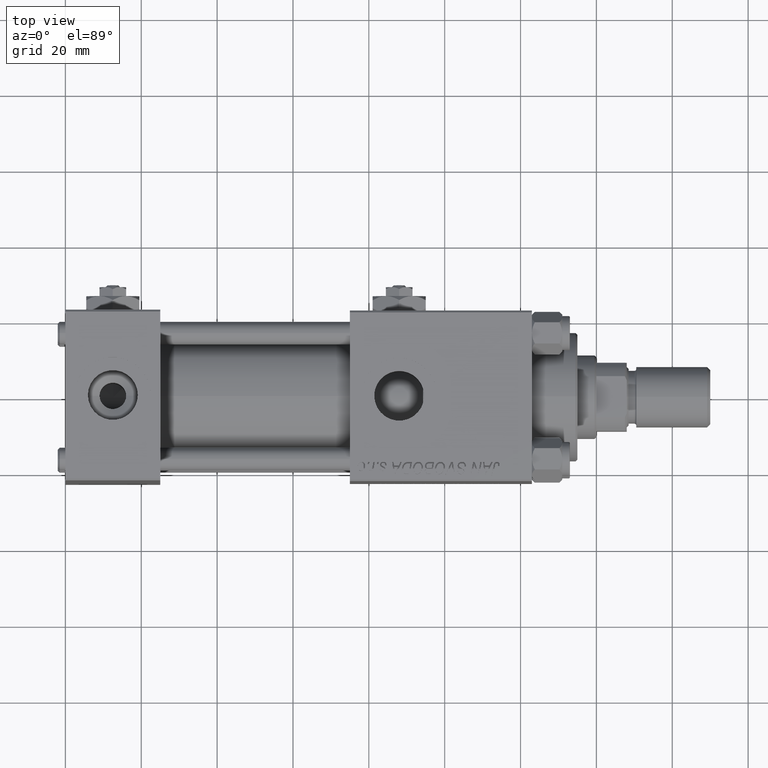
[diagram: clean part render]
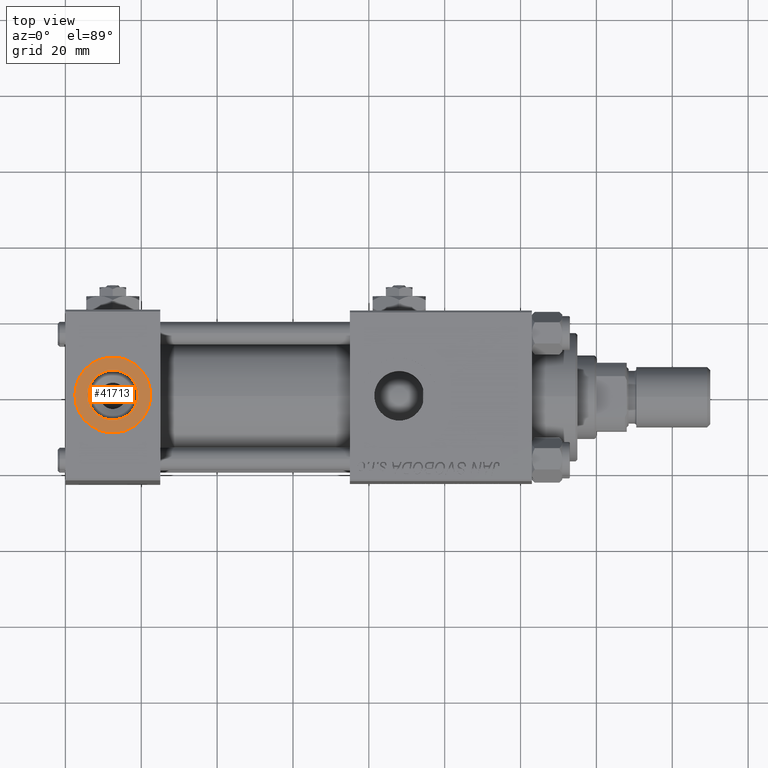
[diagram: same view with one face highlighted and labeled with its STEP entity id]
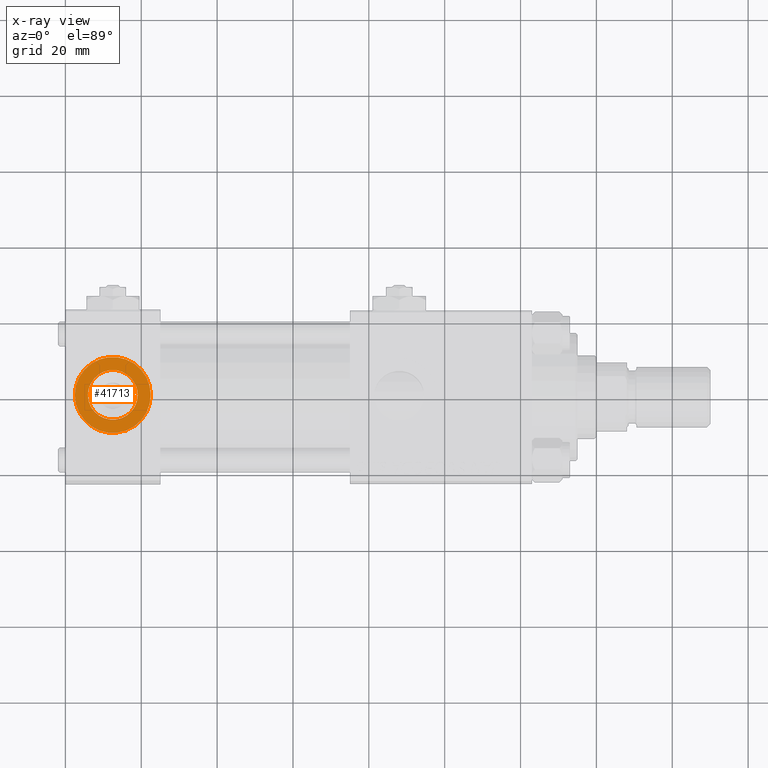
[diagram: x-ray of the same camera — body ghosted, the highlighted face saturated]
A machine part, top view. The second image highlights one B-rep face of the part: STEP entity #41713.
The next image is the same camera in x-ray: the body ghosted, the highlighted face saturated — about 0% of this face is hidden behind the body in this view.
In plain terms, the highlighted planar face has unit normal (0, 0, 1).
Its self-contained STEP definition (entity closure, byte-faithful):
#81 = CIRCLE ( 'NONE', #25495, 9.999999999999998224 ) ;
#1897 = EDGE_CURVE ( 'NONE', #22510, #25161, #81, .T. ) ;
#2862 = DIRECTION ( 'NONE',  ( 1.000000000000000000, 0.000000000000000000, -0.000000000000000000 ) ) ;
#3526 = CIRCLE ( 'NONE', #27333, 6.579999999999999183 ) ;
#3642 = AXIS2_PLACEMENT_3D ( 'NONE', #48685, #12370, #28492 ) ;
#6389 = ORIENTED_EDGE ( 'NONE', *, *, #47489, .F. ) ;
#7022 = EDGE_LOOP ( 'NONE', ( #17977, #9471 ) ) ;
#9471 = ORIENTED_EDGE ( 'NONE', *, *, #14762, .T. ) ;
#10438 = ORIENTED_EDGE ( 'NONE', *, *, #44525, .F. ) ;
#11974 = CARTESIAN_POINT ( 'NONE',  ( 5.920000000000002593, -4.591099886977776069E-15, 34.80000000000000426 ) ) ;
#12370 = DIRECTION ( 'NONE',  ( 0.000000000000000000, 0.000000000000000000, 1.000000000000000000 ) ) ;
#12468 = DIRECTION ( 'NONE',  ( 1.000000000000000000, 0.000000000000000000, 0.000000000000000000 ) ) ;
#14042 = CARTESIAN_POINT ( 'NONE',  ( 2.500000000000003997, -4.172270681669381263E-15, 34.80000000000000426 ) ) ;
#14650 = CARTESIAN_POINT ( 'NONE',  ( 12.50000000000000000, -5.396917480816734322E-15, 34.80000000000000426 ) ) ;
#14762 = EDGE_CURVE ( 'NONE', #25161, #22510, #27220, .T. ) ;
#15045 = DIRECTION ( 'NONE',  ( 0.000000000000000000, 0.000000000000000000, 1.000000000000000000 ) ) ;
#15515 = DIRECTION ( 'NONE',  ( 1.000000000000000000, 0.000000000000000000, 0.000000000000000000 ) ) ;
#16923 = VERTEX_POINT ( 'NONE', #52189 ) ;
#17092 = AXIS2_PLACEMENT_3D ( 'NONE', #35428, #15045, #2862 ) ;
#17977 = ORIENTED_EDGE ( 'NONE', *, *, #1897, .T. ) ;
#22510 = VERTEX_POINT ( 'NONE', #40794 ) ;
#23260 = FACE_BOUND ( 'NONE', #39030, .T. ) ;
#23709 = CARTESIAN_POINT ( 'NONE',  ( 12.50000000000000000, -5.396917480816734322E-15, 34.80000000000000426 ) ) ;
#25161 = VERTEX_POINT ( 'NONE', #14042 ) ;
#25495 = AXIS2_PLACEMENT_3D ( 'NONE', #42593, #46320, #12468 ) ;
#27220 = CIRCLE ( 'NONE', #37355, 9.999999999999998224 ) ;
#27333 = AXIS2_PLACEMENT_3D ( 'NONE', #14650, #35544, #52014 ) ;
#28492 = DIRECTION ( 'NONE',  ( 1.000000000000000000, 0.000000000000000000, 0.000000000000000000 ) ) ;
#31700 = PLANE ( 'NONE',  #17092 ) ;
#35428 = CARTESIAN_POINT ( 'NONE',  ( 12.50000000000000000, -5.396917480816734322E-15, 34.80000000000000426 ) ) ;
#35544 = DIRECTION ( 'NONE',  ( 0.000000000000000000, 0.000000000000000000, 1.000000000000000000 ) ) ;
#35673 = VERTEX_POINT ( 'NONE', #11974 ) ;
#36192 = FACE_OUTER_BOUND ( 'NONE', #7022, .T. ) ;
#37355 = AXIS2_PLACEMENT_3D ( 'NONE', #23709, #51841, #15515 ) ;
#39030 = EDGE_LOOP ( 'NONE', ( #6389, #10438 ) ) ;
#40794 = CARTESIAN_POINT ( 'NONE',  ( 22.50000000000000000, -5.396917480816734322E-15, 34.80000000000000426 ) ) ;
#41713 = ADVANCED_FACE ( 'NONE', ( #23260, #36192 ), #31700, .T. ) ;
#42593 = CARTESIAN_POINT ( 'NONE',  ( 12.50000000000000000, -5.396917480816734322E-15, 34.80000000000000426 ) ) ;
#44525 = EDGE_CURVE ( 'NONE', #35673, #16923, #3526, .T. ) ;
#46320 = DIRECTION ( 'NONE',  ( 0.000000000000000000, 0.000000000000000000, 1.000000000000000000 ) ) ;
#47489 = EDGE_CURVE ( 'NONE', #16923, #35673, #51063, .T. ) ;
#48685 = CARTESIAN_POINT ( 'NONE',  ( 12.50000000000000000, -5.396917480816734322E-15, 34.80000000000000426 ) ) ;
#51063 = CIRCLE ( 'NONE', #3642, 6.579999999999999183 ) ;
#51841 = DIRECTION ( 'NONE',  ( 0.000000000000000000, 0.000000000000000000, 1.000000000000000000 ) ) ;
#52014 = DIRECTION ( 'NONE',  ( 1.000000000000000000, 0.000000000000000000, 0.000000000000000000 ) ) ;
#52189 = CARTESIAN_POINT ( 'NONE',  ( 19.07999999999999829, -5.396917480816734322E-15, 34.80000000000000426 ) ) ;